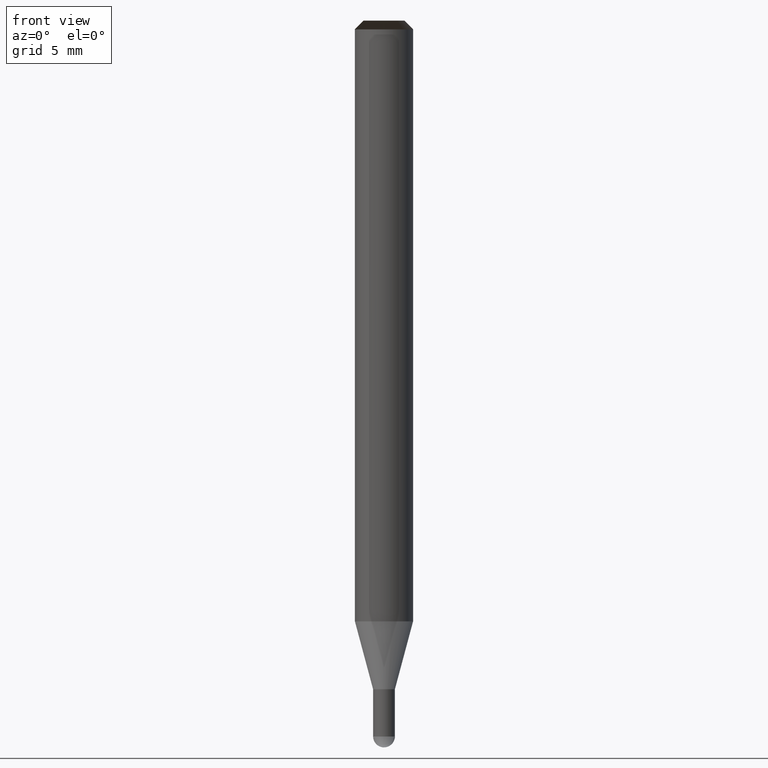
[diagram: clean part render]
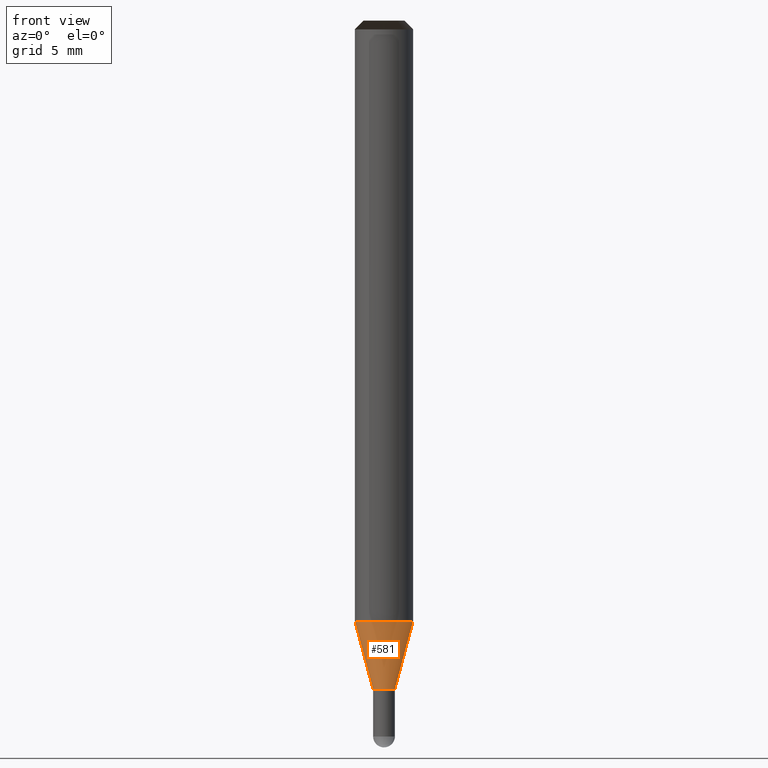
[diagram: same view with one face highlighted and labeled with its STEP entity id]
A machine part, front view. The second image highlights one B-rep face of the part: STEP entity #581.
In plain terms, the highlighted face is a freeform B-spline surface patch.
Its self-contained STEP definition (entity closure, byte-faithful):
#268=CARTESIAN_POINT('',(0.75,0.0,-4.665063509461));
#272=CARTESIAN_POINT('',(-0.75,0.0,-4.665063509461));
#273=CARTESIAN_POINT('',(2.0,0.0,0.0));
#277=CARTESIAN_POINT('',(-2.0,0.0,0.0));
#289=CARTESIAN_POINT('',(-0.75,-0.75,-4.665063509461));
#290=CARTESIAN_POINT('',(0.0,-0.75,-4.665063509461));
#291=CARTESIAN_POINT('',(0.75,-0.75,-4.665063509461));
#292=CARTESIAN_POINT('',(-2.0,-2.0,0.0));
#293=CARTESIAN_POINT('',(0.0,-2.0,0.0));
#294=CARTESIAN_POINT('',(2.0,-2.0,0.0));
#562=(
BOUNDED_SURFACE()
B_SPLINE_SURFACE(1,2,(
(#272,#289,#290,#291,#268),
(#277,#292,#293,#294,#273)
), .UNSPECIFIED.,.F.,.F.,.F.)
B_SPLINE_SURFACE_WITH_KNOTS((2,2),(3,2,3),(
0.0,1.0),(
0.0,0.5,1.0), .UNSPECIFIED.)
GEOMETRIC_REPRESENTATION_ITEM()
RATIONAL_B_SPLINE_SURFACE(((1.0,0.707106781187,1.0,0.707106781187,1.0),
(1.0,0.707106781187,1.0,0.707106781187,1.0)
))
REPRESENTATION_ITEM('')
SURFACE()
);
#563=(
BOUNDED_CURVE()
B_SPLINE_CURVE(1,(#277,#272),.UNSPECIFIED.,.F.,.F.)
B_SPLINE_CURVE_WITH_KNOTS((2,2),
(0.0,1.0),.UNSPECIFIED.)
CURVE()
GEOMETRIC_REPRESENTATION_ITEM()
RATIONAL_B_SPLINE_CURVE((1.0,1.0))
REPRESENTATION_ITEM('')
);
#564=(
BOUNDED_CURVE()
B_SPLINE_CURVE(2,(#272,#289,#290,#291,#268),.UNSPECIFIED.,.F.,.F.)
B_SPLINE_CURVE_WITH_KNOTS((3,2,3),
(0.0,0.5,1.0),.UNSPECIFIED.)
CURVE()
GEOMETRIC_REPRESENTATION_ITEM()
RATIONAL_B_SPLINE_CURVE((1.0,0.707106781187,1.0,0.707106781187,1.0))
REPRESENTATION_ITEM('')
);
#565=(
BOUNDED_CURVE()
B_SPLINE_CURVE(1,(#268,#273),.UNSPECIFIED.,.F.,.F.)
B_SPLINE_CURVE_WITH_KNOTS((2,2),
(0.0,1.0),.UNSPECIFIED.)
CURVE()
GEOMETRIC_REPRESENTATION_ITEM()
RATIONAL_B_SPLINE_CURVE((1.0,1.0))
REPRESENTATION_ITEM('')
);
#566=(
BOUNDED_CURVE()
B_SPLINE_CURVE(2,(#273,#294,#293,#292,#277),.UNSPECIFIED.,.F.,.F.)
B_SPLINE_CURVE_WITH_KNOTS((3,2,3),
(0.0,0.5,1.0),.UNSPECIFIED.)
CURVE()
GEOMETRIC_REPRESENTATION_ITEM()
RATIONAL_B_SPLINE_CURVE((1.0,0.707106781187,1.0,0.707106781187,1.0))
REPRESENTATION_ITEM('')
);
#567=VERTEX_POINT('',#268);
#568=VERTEX_POINT('',#272);
#569=VERTEX_POINT('',#273);
#570=VERTEX_POINT('',#277);
#571=EDGE_CURVE('',#570,#568,#563,.T.);
#572=EDGE_CURVE('',#568,#567,#564,.T.);
#573=EDGE_CURVE('',#567,#569,#565,.T.);
#574=EDGE_CURVE('',#569,#570,#566,.T.);
#575=ORIENTED_EDGE('',*,*,#571,.T.);
#576=ORIENTED_EDGE('',*,*,#572,.T.);
#577=ORIENTED_EDGE('',*,*,#573,.T.);
#578=ORIENTED_EDGE('',*,*,#574,.T.);
#579=EDGE_LOOP('',(#575,#576,#577,#578));
#580=FACE_OUTER_BOUND('',#579,.T.);
#581=ADVANCED_FACE('',(#580),#562,.T.);